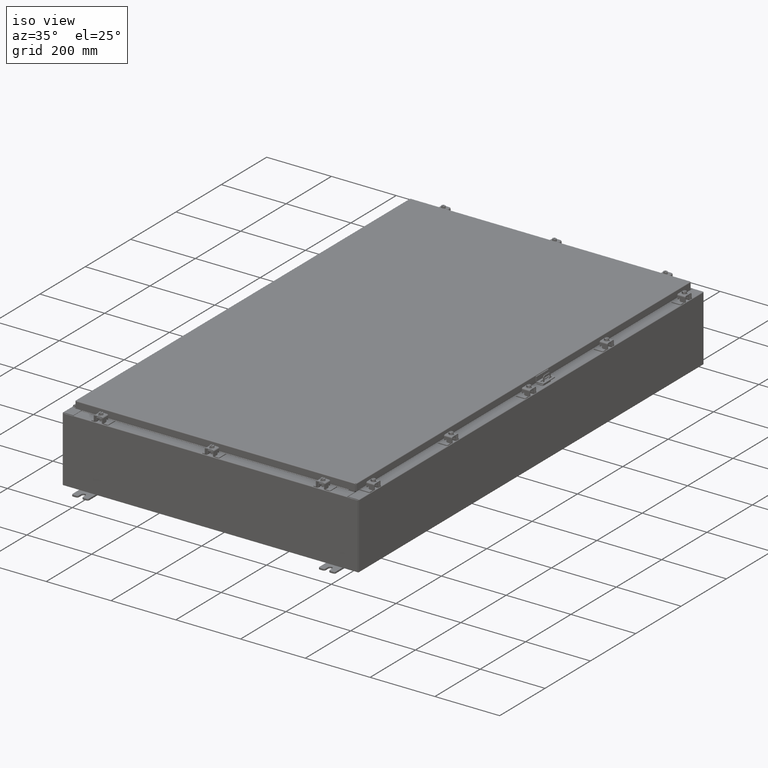
[diagram: clean part render]
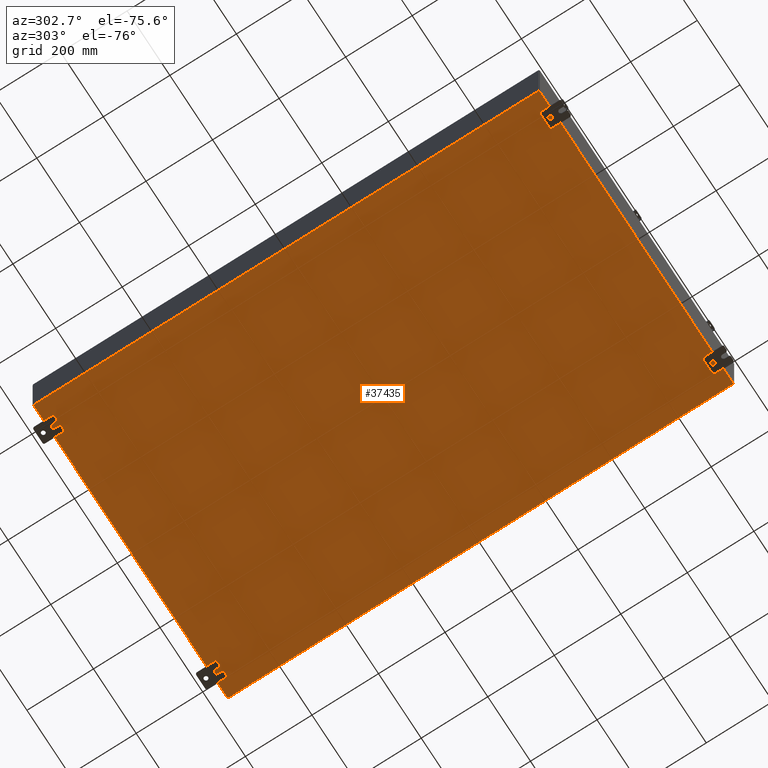
[diagram: tour spotlight — one face highlighted and labeled with its STEP entity id]
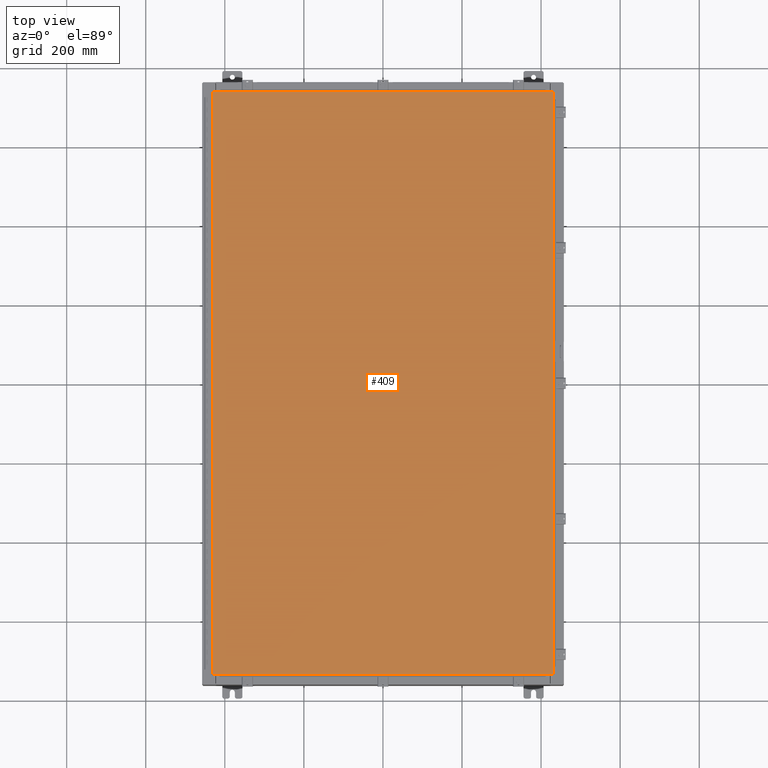
[diagram: tour spotlight — one face highlighted and labeled with its STEP entity id]
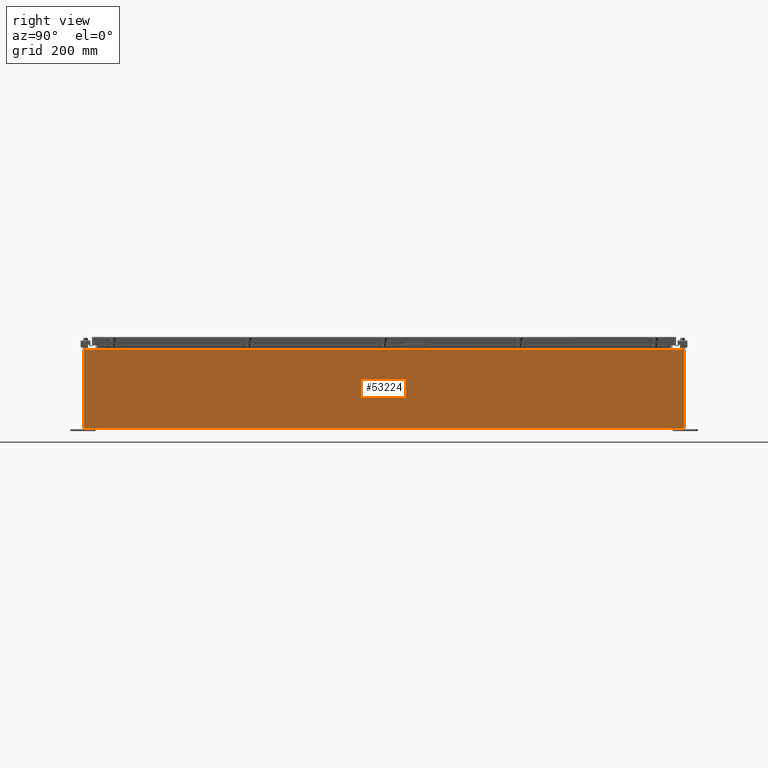
[diagram: tour spotlight — one face highlighted and labeled with its STEP entity id]
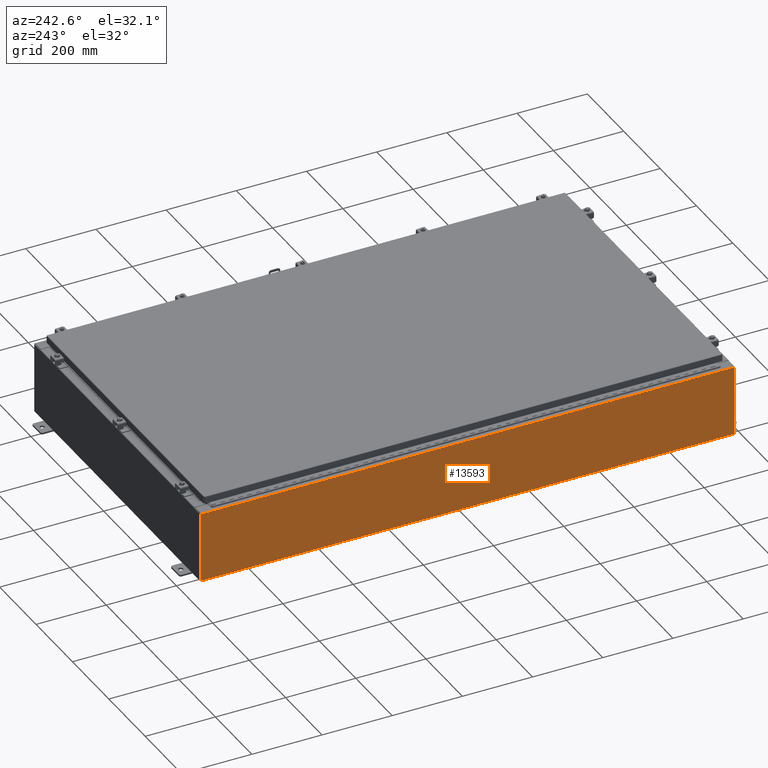
[diagram: tour spotlight — one face highlighted and labeled with its STEP entity id]
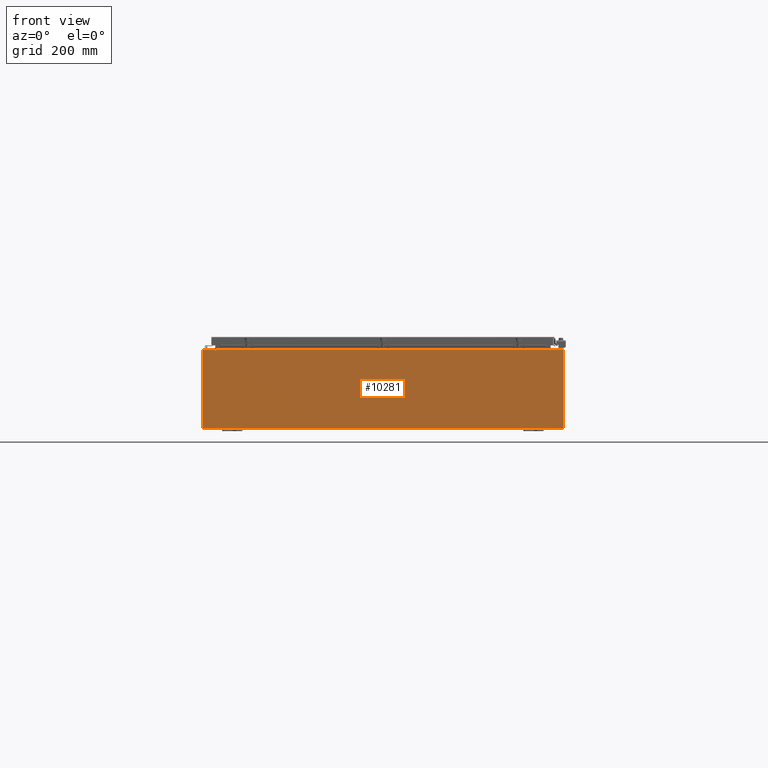
[diagram: tour spotlight — one face highlighted and labeled with its STEP entity id]
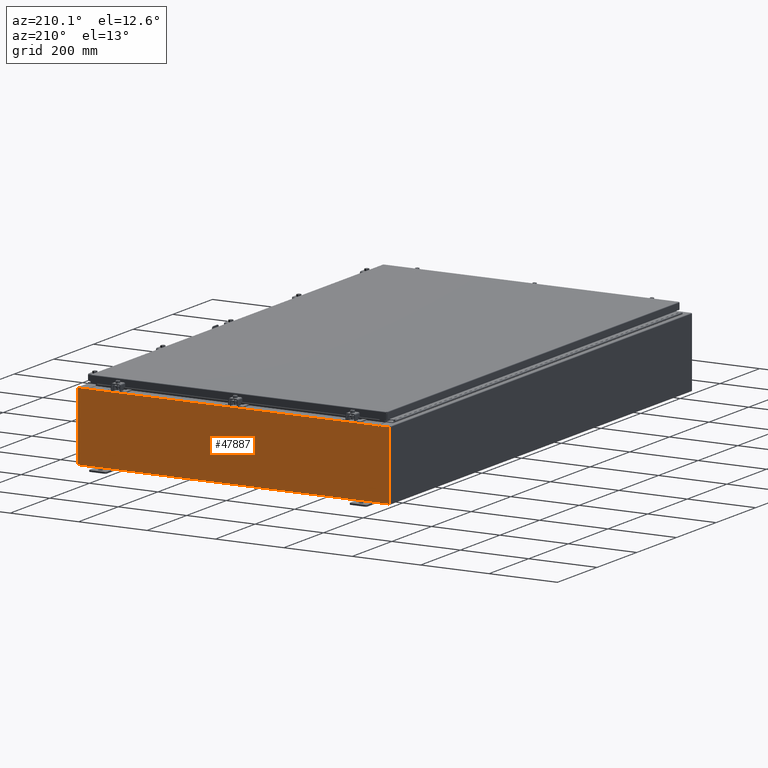
[diagram: tour spotlight — one face highlighted and labeled with its STEP entity id]
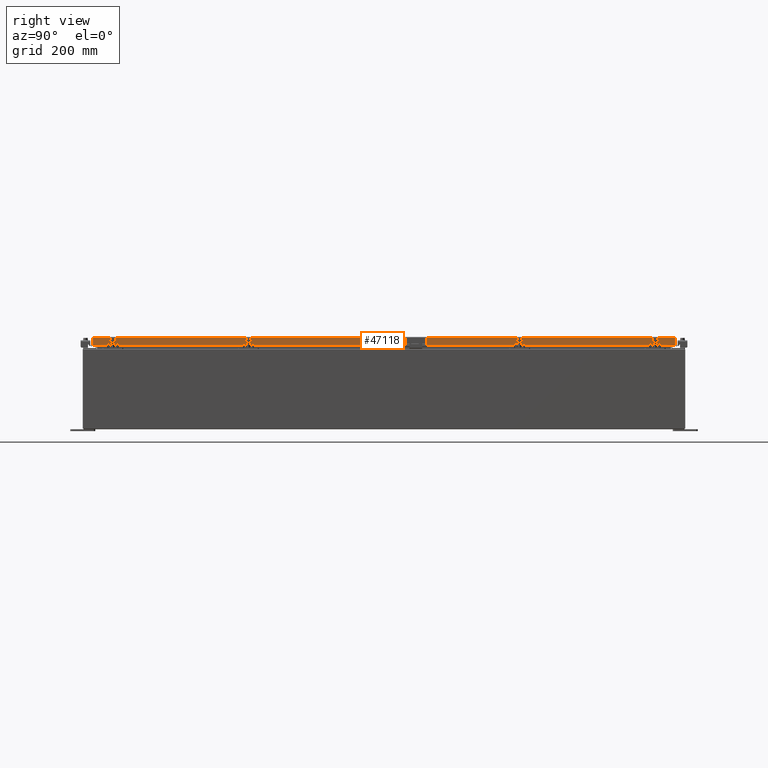
[diagram: tour spotlight — one face highlighted and labeled with its STEP entity id]
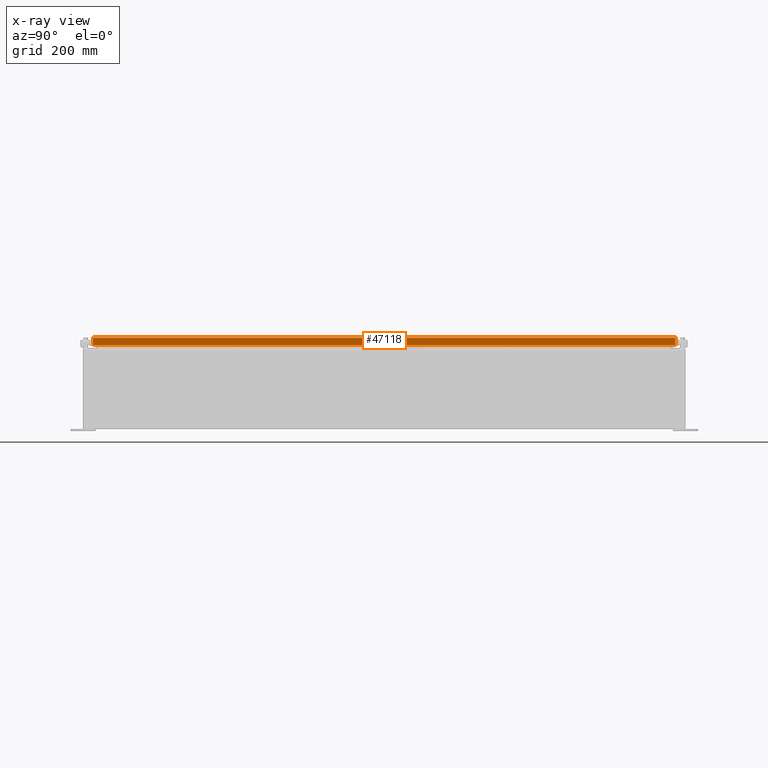
[diagram: x-ray of the same camera — body ghosted, this tour face saturated]
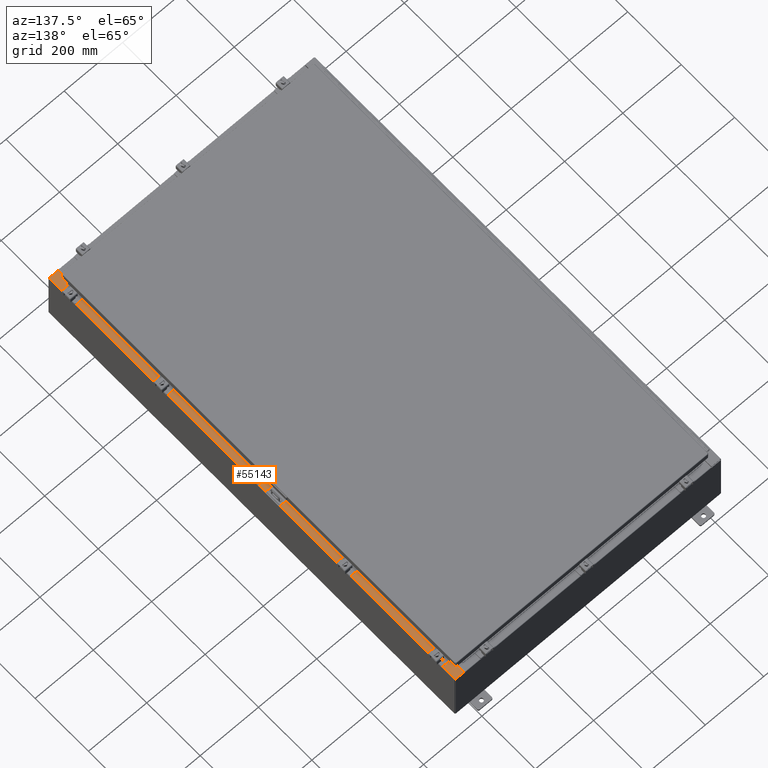
[diagram: tour spotlight — one face highlighted and labeled with its STEP entity id]
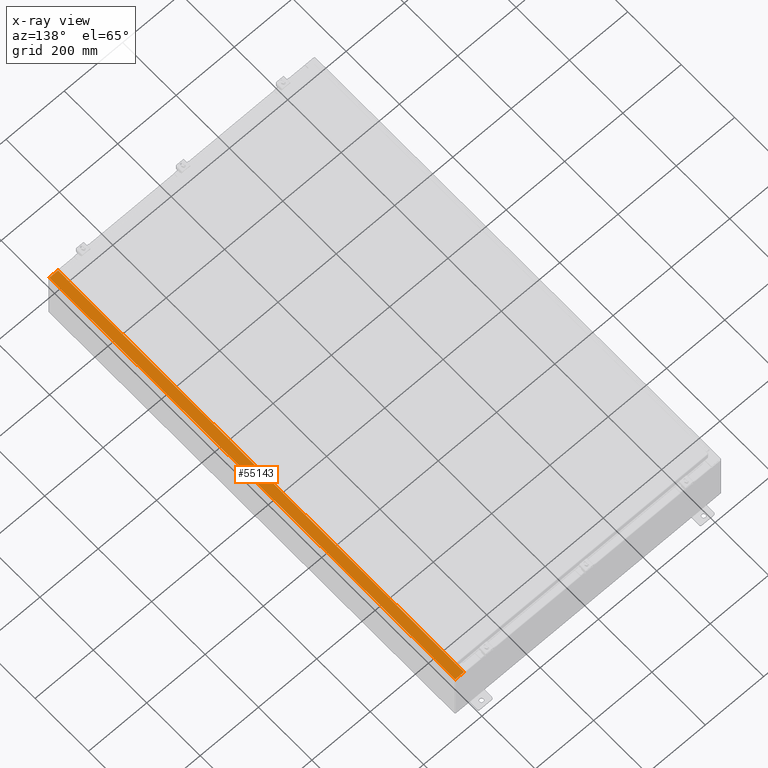
[diagram: x-ray of the same camera — body ghosted, this tour face saturated]
A machine part: a face-by-face anatomy tour. The part has 3408 B-rep faces; the first image is the clean iso view, then the 8 largest visible faces are spotlighted one at a time (largest first), each with its STEP entity span.

Face 1 — auxiliary view, entity #37435. In plain terms, the highlighted planar face has unit normal (0, 0, -1).
Definition (entity closure, byte-faithful):
#1603 = ORIENTED_EDGE ( 'NONE', *, *, #60776, .T. ) ;
#5049 = CARTESIAN_POINT ( 'NONE',  ( 17.91229999999999800, 29.92529999999999300, -0.07469999999999994700 ) ) ;
#5787 = CARTESIAN_POINT ( 'NONE',  ( -17.91230000000000200, -29.92530000000001100, -0.07469999999999994700 ) ) ;
#6430 = LINE ( 'NONE', #50880, #17838 ) ;
#7726 = VECTOR ( 'NONE', #9812, 39.37007874015748100 ) ;
#9385 = VECTOR ( 'NONE', #24857, 39.37007874015748100 ) ;
#9812 = DIRECTION ( 'NONE',  ( -0.0000000000000000000, 1.000000000000000000, -0.0000000000000000000 ) ) ;
#14116 = DIRECTION ( 'NONE',  ( -1.000000000000000000, 0.0000000000000000000, -0.0000000000000000000 ) ) ;
#15830 = ORIENTED_EDGE ( 'NONE', *, *, #21130, .F. ) ;
#16403 = CARTESIAN_POINT ( 'NONE',  ( -18.00000000000000400, 29.92529999999998900, -0.07470000000000000300 ) ) ;
#17427 = VERTEX_POINT ( 'NONE', #45026 ) ;
#17838 = VECTOR ( 'NONE', #26644, 39.37007874015748100 ) ;
#19529 = ORIENTED_EDGE ( 'NONE', *, *, #51950, .F. ) ;
#21130 = EDGE_CURVE ( 'NONE', #33165, #55485, #6430, .T. ) ;
#21975 = EDGE_CURVE ( 'NONE', #17427, #55485, #52750, .T. ) ;
#24857 = DIRECTION ( 'NONE',  ( -0.0000000000000000000, -1.000000000000000000, -0.0000000000000000000 ) ) ;
#26373 = CARTESIAN_POINT ( 'NONE',  ( 17.91229999999999800, -29.92530000000001100, -0.07470000000000000300 ) ) ;
#26644 = DIRECTION ( 'NONE',  ( 1.000000000000000000, 0.0000000000000000000, 0.0000000000000000000 ) ) ;
#31660 = VECTOR ( 'NONE', #45755, 39.37007874015748100 ) ;
#33165 = VERTEX_POINT ( 'NONE', #5787 ) ;
#36743 = VERTEX_POINT ( 'NONE', #62261 ) ;
#37435 = ADVANCED_FACE ( 'NONE', ( #54091 ), #38359, .T. ) ;
#38359 = PLANE ( 'NONE',  #50583 ) ;
#43231 = DIRECTION ( 'NONE',  ( 0.0000000000000000000, 0.0000000000000000000, -1.000000000000000000 ) ) ;
#43801 = CARTESIAN_POINT ( 'NONE',  ( -17.91230000000000200, -29.92530000000002100, -0.07469999999999994700 ) ) ;
#44640 = LINE ( 'NONE', #16403, #31660 ) ;
#44839 = ORIENTED_EDGE ( 'NONE', *, *, #21975, .T. ) ;
#45026 = CARTESIAN_POINT ( 'NONE',  ( 17.91229999999999800, 29.92529999999999300, -0.07469999999999994700 ) ) ;
#45755 = DIRECTION ( 'NONE',  ( -1.000000000000000000, -0.0000000000000000000, -0.0000000000000000000 ) ) ;
#49590 = LINE ( 'NONE', #43801, #7726 ) ;
#50583 = AXIS2_PLACEMENT_3D ( 'NONE', #52635, #43231, #14116 ) ;
#50880 = CARTESIAN_POINT ( 'NONE',  ( -18.00000000000000400, -29.92530000000001100, -0.07470000000000000300 ) ) ;
#51950 = EDGE_CURVE ( 'NONE', #17427, #36743, #44640, .T. ) ;
#52635 = CARTESIAN_POINT ( 'NONE',  ( 0.0000000000000000000, 0.0000000000000000000, -0.07470000000000000300 ) ) ;
#52750 = LINE ( 'NONE', #5049, #9385 ) ;
#54091 = FACE_OUTER_BOUND ( 'NONE', #62811, .T. ) ;
#55485 = VERTEX_POINT ( 'NONE', #26373 ) ;
#60776 = EDGE_CURVE ( 'NONE', #33165, #36743, #49590, .T. ) ;
#62261 = CARTESIAN_POINT ( 'NONE',  ( -17.91230000000000200, 29.92529999999998600, -0.07470000000000000300 ) ) ;
#62811 = EDGE_LOOP ( 'NONE', ( #15830, #1603, #19529, #44839 ) ) ;

Face 2 — top view, entity #409. In plain terms, the highlighted planar face has unit normal (0, 0, -1).
Definition (entity closure, byte-faithful):
#403 = VECTOR ( 'NONE', #12833, 39.37007874015748100 ) ;
#409 = ADVANCED_FACE ( 'NONE', ( #11897 ), #21359, .F. ) ;
#988 = CARTESIAN_POINT ( 'NONE',  ( 16.99030000000000500, -29.00630000000000000, -2.048885995248197400E-016 ) ) ;
#1909 = LINE ( 'NONE', #37053, #403 ) ;
#1910 = AXIS2_PLACEMENT_3D ( 'NONE', #20847, #22173, #22594 ) ;
#2416 = VERTEX_POINT ( 'NONE', #37028 ) ;
#2711 = EDGE_CURVE ( 'NONE', #2416, #16152, #38317, .T. ) ;
#4378 = ORIENTED_EDGE ( 'NONE', *, *, #29459, .T. ) ;
#8164 = DIRECTION ( 'NONE',  ( 0.0000000000000000000, 1.000000000000000000, 0.0000000000000000000 ) ) ;
#8672 = ORIENTED_EDGE ( 'NONE', *, *, #61879, .T. ) ;
#9454 = VECTOR ( 'NONE', #33738, 39.37007874015748100 ) ;
#10577 = ORIENTED_EDGE ( 'NONE', *, *, #52795, .T. ) ;
#11897 = FACE_OUTER_BOUND ( 'NONE', #26634, .T. ) ;
#12449 = VECTOR ( 'NONE', #17424, 39.37007874015748100 ) ;
#12833 = DIRECTION ( 'NONE',  ( 1.000000000000000000, -0.0000000000000000000, -0.0000000000000000000 ) ) ;
#12842 = CARTESIAN_POINT ( 'NONE',  ( 16.99030000000000500, -29.00630000000000000, -2.048885995248197400E-016 ) ) ;
#16152 = VERTEX_POINT ( 'NONE', #44330 ) ;
#17343 = CARTESIAN_POINT ( 'NONE',  ( -16.99029999999998400, 29.00630000000000000, 4.166068190338001500E-015 ) ) ;
#17424 = DIRECTION ( 'NONE',  ( 0.0000000000000000000, -1.000000000000000000, 0.0000000000000000000 ) ) ;
#20716 = VERTEX_POINT ( 'NONE', #62972 ) ;
#20847 = CARTESIAN_POINT ( 'NONE',  ( 0.0000000000000000000, 0.0000000000000000000, 0.0000000000000000000 ) ) ;
#21359 = PLANE ( 'NONE',  #1910 ) ;
#22173 = DIRECTION ( 'NONE',  ( 0.0000000000000000000, 0.0000000000000000000, -1.000000000000000000 ) ) ;
#22594 = DIRECTION ( 'NONE',  ( -1.000000000000000000, 0.0000000000000000000, -0.0000000000000000000 ) ) ;
#25032 = ORIENTED_EDGE ( 'NONE', *, *, #2711, .T. ) ;
#26634 = EDGE_LOOP ( 'NONE', ( #10577, #8672, #4378, #25032 ) ) ;
#29459 = EDGE_CURVE ( 'NONE', #20716, #2416, #48245, .T. ) ;
#33738 = DIRECTION ( 'NONE',  ( -1.000000000000000000, -0.0000000000000000000, -0.0000000000000000000 ) ) ;
#34311 = VERTEX_POINT ( 'NONE', #988 ) ;
#37028 = CARTESIAN_POINT ( 'NONE',  ( -16.99029999999998400, 29.00630000000000000, 4.166068190338001500E-015 ) ) ;
#37053 = CARTESIAN_POINT ( 'NONE',  ( -16.99029999999999800, -29.00630000000000300, 1.946441695485787500E-015 ) ) ;
#38317 = LINE ( 'NONE', #17343, #12449 ) ;
#44330 = CARTESIAN_POINT ( 'NONE',  ( -16.99029999999999800, -29.00630000000000300, 1.946441695485787500E-015 ) ) ;
#46500 = VECTOR ( 'NONE', #8164, 39.37007874015748100 ) ;
#48245 = LINE ( 'NONE', #53377, #9454 ) ;
#52795 = EDGE_CURVE ( 'NONE', #16152, #34311, #1909, .T. ) ;
#53377 = CARTESIAN_POINT ( 'NONE',  ( 16.99030000000000500, 29.00630000000000300, 1.946441695485787500E-015 ) ) ;
#59437 = LINE ( 'NONE', #12842, #46500 ) ;
#61879 = EDGE_CURVE ( 'NONE', #34311, #20716, #59437, .T. ) ;
#62972 = CARTESIAN_POINT ( 'NONE',  ( 16.99030000000000500, 29.00630000000000300, 1.946441695485787500E-015 ) ) ;

Face 3 — right view, entity #53224. In plain terms, the highlighted planar face has unit normal (-1, 0, 0).
Definition (entity closure, byte-faithful):
#386 = LINE ( 'NONE', #38006, #39170 ) ;
#1513 = PLANE ( 'NONE',  #7719 ) ;
#1891 = ORIENTED_EDGE ( 'NONE', *, *, #44967, .T. ) ;
#2471 = DIRECTION ( 'NONE',  ( -0.0000000000000000000, -1.000000000000000000, -0.0000000000000000000 ) ) ;
#6407 = DIRECTION ( 'NONE',  ( -1.000000000000000000, 0.0000000000000000000, 3.584876173029202900E-015 ) ) ;
#7390 = CARTESIAN_POINT ( 'NONE',  ( 17.99999999999999600, -29.92530000000001100, 0.01299999999999984700 ) ) ;
#7719 = AXIS2_PLACEMENT_3D ( 'NONE', #50010, #6407, #40420 ) ;
#8196 = VECTOR ( 'NONE', #26400, 39.37007874015748100 ) ;
#8328 = ORIENTED_EDGE ( 'NONE', *, *, #55712, .T. ) ;
#9732 = LINE ( 'NONE', #21545, #8196 ) ;
#10943 = CARTESIAN_POINT ( 'NONE',  ( 18.00000000000002500, 29.92529999999999300, 7.837599999999999200 ) ) ;
#12303 = LINE ( 'NONE', #29172, #22190 ) ;
#13764 = CARTESIAN_POINT ( 'NONE',  ( 18.00000000000002500, -29.92530000000001100, 7.837599999999999200 ) ) ;
#13772 = DIRECTION ( 'NONE',  ( -3.584876173029202900E-015, 0.0000000000000000000, -1.000000000000000000 ) ) ;
#14478 = VECTOR ( 'NONE', #2471, 39.37007874015748100 ) ;
#16245 = VERTEX_POINT ( 'NONE', #10943 ) ;
#16683 = VERTEX_POINT ( 'NONE', #19620 ) ;
#19103 = ORIENTED_EDGE ( 'NONE', *, *, #49049, .F. ) ;
#19179 = EDGE_CURVE ( 'NONE', #16245, #32298, #9732, .T. ) ;
#19620 = CARTESIAN_POINT ( 'NONE',  ( 17.99999999999999600, -29.92530000000001100, 0.01299999999999983600 ) ) ;
#21250 = ORIENTED_EDGE ( 'NONE', *, *, #19179, .T. ) ;
#21545 = CARTESIAN_POINT ( 'NONE',  ( 18.00000000000002500, 29.92529999999999300, 7.837599999999999200 ) ) ;
#22190 = VECTOR ( 'NONE', #58351, 39.37007874015748100 ) ;
#26400 = DIRECTION ( 'NONE',  ( -0.0000000000000000000, -1.000000000000000000, -0.0000000000000000000 ) ) ;
#29172 = CARTESIAN_POINT ( 'NONE',  ( 17.99999999999999600, 29.92529999999998900, -6.478858477053722900E-014 ) ) ;
#32298 = VERTEX_POINT ( 'NONE', #13764 ) ;
#32356 = CARTESIAN_POINT ( 'NONE',  ( 17.99999999999999600, 29.92529999999999300, 0.01299999999999984700 ) ) ;
#35085 = EDGE_LOOP ( 'NONE', ( #21250, #8328, #19103, #1891 ) ) ;
#35521 = VERTEX_POINT ( 'NONE', #32356 ) ;
#38006 = CARTESIAN_POINT ( 'NONE',  ( 17.99999999999999600, -29.92530000000001100, -6.478858477053722900E-014 ) ) ;
#39170 = VECTOR ( 'NONE', #13772, 39.37007874015748100 ) ;
#40420 = DIRECTION ( 'NONE',  ( 3.584876173029202900E-015, 0.0000000000000000000, 1.000000000000000000 ) ) ;
#42192 = FACE_OUTER_BOUND ( 'NONE', #35085, .T. ) ;
#44967 = EDGE_CURVE ( 'NONE', #35521, #16245, #12303, .T. ) ;
#49049 = EDGE_CURVE ( 'NONE', #35521, #16683, #53301, .T. ) ;
#50010 = CARTESIAN_POINT ( 'NONE',  ( 17.99999999999999600, 0.0000000000000000000, -6.478858477053722900E-014 ) ) ;
#53224 = ADVANCED_FACE ( 'NONE', ( #42192 ), #1513, .F. ) ;
#53301 = LINE ( 'NONE', #7390, #14478 ) ;
#55712 = EDGE_CURVE ( 'NONE', #32298, #16683, #386, .T. ) ;
#58351 = DIRECTION ( 'NONE',  ( 3.584876173029202900E-015, 0.0000000000000000000, 1.000000000000000000 ) ) ;

Face 4 — auxiliary view, entity #13593. In plain terms, the highlighted planar face has unit normal (1, 0, 0).
Definition (entity closure, byte-faithful):
#926 = LINE ( 'NONE', #41062, #25300 ) ;
#7047 = DIRECTION ( 'NONE',  ( 0.0000000000000000000, 1.000000000000000000, 0.0000000000000000000 ) ) ;
#7228 = EDGE_CURVE ( 'NONE', #17235, #33564, #9316, .T. ) ;
#7779 = VECTOR ( 'NONE', #56837, 39.37007874015748100 ) ;
#9316 = LINE ( 'NONE', #13621, #17647 ) ;
#9848 = VERTEX_POINT ( 'NONE', #25847 ) ;
#11252 = EDGE_CURVE ( 'NONE', #9848, #33564, #32710, .T. ) ;
#12943 = EDGE_LOOP ( 'NONE', ( #30754, #39002, #27294, #26494 ) ) ;
#13418 = DIRECTION ( 'NONE',  ( 3.584876173029202900E-015, 0.0000000000000000000, -1.000000000000000000 ) ) ;
#13593 = ADVANCED_FACE ( 'NONE', ( #37883 ), #32947, .F. ) ;
#13621 = CARTESIAN_POINT ( 'NONE',  ( -18.00000000000000400, 29.92529999999998900, -6.478858477053724100E-014 ) ) ;
#17235 = VERTEX_POINT ( 'NONE', #38667 ) ;
#17647 = VECTOR ( 'NONE', #13418, 39.37007874015748100 ) ;
#19851 = VECTOR ( 'NONE', #27758, 39.37007874015748100 ) ;
#20731 = LINE ( 'NONE', #51922, #7779 ) ;
#23462 = DIRECTION ( 'NONE',  ( 3.584876173029202900E-015, 0.0000000000000000000, -1.000000000000000000 ) ) ;
#24698 = EDGE_CURVE ( 'NONE', #9848, #60114, #20731, .T. ) ;
#25300 = VECTOR ( 'NONE', #7047, 39.37007874015748100 ) ;
#25847 = CARTESIAN_POINT ( 'NONE',  ( -18.00000000000000400, -29.92530000000001100, 0.01299999999999984700 ) ) ;
#26494 = ORIENTED_EDGE ( 'NONE', *, *, #24698, .T. ) ;
#27294 = ORIENTED_EDGE ( 'NONE', *, *, #11252, .F. ) ;
#27758 = DIRECTION ( 'NONE',  ( -0.0000000000000000000, 1.000000000000000000, -0.0000000000000000000 ) ) ;
#27931 = CARTESIAN_POINT ( 'NONE',  ( -18.00000000000002800, -29.92530000000001100, 7.837599999999999200 ) ) ;
#30754 = ORIENTED_EDGE ( 'NONE', *, *, #44500, .T. ) ;
#32710 = LINE ( 'NONE', #37331, #19851 ) ;
#32947 = PLANE ( 'NONE',  #60270 ) ;
#33564 = VERTEX_POINT ( 'NONE', #43809 ) ;
#37331 = CARTESIAN_POINT ( 'NONE',  ( -18.00000000000000400, 29.92529999999998900, 0.01299999999999984700 ) ) ;
#37876 = CARTESIAN_POINT ( 'NONE',  ( -18.00000000000000400, 0.0000000000000000000, -6.478858477053724100E-014 ) ) ;
#37883 = FACE_OUTER_BOUND ( 'NONE', #12943, .T. ) ;
#38667 = CARTESIAN_POINT ( 'NONE',  ( -18.00000000000003200, 29.92529999999998900, 7.837599999999999200 ) ) ;
#39002 = ORIENTED_EDGE ( 'NONE', *, *, #7228, .T. ) ;
#41062 = CARTESIAN_POINT ( 'NONE',  ( -18.00000000000002800, -29.92530000000001800, 7.837599999999999200 ) ) ;
#43809 = CARTESIAN_POINT ( 'NONE',  ( -18.00000000000000400, 29.92529999999998600, 0.01299999999999983600 ) ) ;
#44500 = EDGE_CURVE ( 'NONE', #60114, #17235, #926, .T. ) ;
#51922 = CARTESIAN_POINT ( 'NONE',  ( -18.00000000000000400, -29.92530000000001100, -6.478858477053724100E-014 ) ) ;
#52590 = DIRECTION ( 'NONE',  ( 1.000000000000000000, 0.0000000000000000000, 3.584876173029202900E-015 ) ) ;
#56837 = DIRECTION ( 'NONE',  ( -3.584876173029202900E-015, 0.0000000000000000000, 1.000000000000000000 ) ) ;
#60114 = VERTEX_POINT ( 'NONE', #27931 ) ;
#60270 = AXIS2_PLACEMENT_3D ( 'NONE', #37876, #52590, #23462 ) ;

Face 5 — front view, entity #10281. In plain terms, the highlighted planar face has unit normal (-0, 1, -0).
Definition (entity closure, byte-faithful):
#173 = VECTOR ( 'NONE', #40017, 39.37007874015748100 ) ;
#1835 = DIRECTION ( 'NONE',  ( -0.0000000000000000000, -0.0000000000000000000, 1.000000000000000000 ) ) ;
#3013 = EDGE_CURVE ( 'NONE', #16136, #43673, #8610, .T. ) ;
#3098 = CARTESIAN_POINT ( 'NONE',  ( 17.92530000000000400, 0.0000000000000000000, -3.925299999999999100 ) ) ;
#3108 = LINE ( 'NONE', #51949, #53362 ) ;
#3187 = LINE ( 'NONE', #18540, #27539 ) ;
#3379 = EDGE_CURVE ( 'NONE', #53410, #9820, #38961, .T. ) ;
#3589 = CARTESIAN_POINT ( 'NONE',  ( -17.92529999999999600, 0.0000000000000000000, 3.925300000000000500 ) ) ;
#4332 = LINE ( 'NONE', #45673, #41607 ) ;
#4975 = LINE ( 'NONE', #42326, #14881 ) ;
#5568 = VERTEX_POINT ( 'NONE', #27023 ) ;
#6186 = EDGE_CURVE ( 'NONE', #36346, #5568, #62677, .T. ) ;
#6452 = VERTEX_POINT ( 'NONE', #61909 ) ;
#8213 = CARTESIAN_POINT ( 'NONE',  ( -17.92529999999999600, 0.0000000000000000000, -3.925299999999999100 ) ) ;
#8610 = CIRCLE ( 'NONE', #31972, 0.01867499999999949400 ) ;
#9115 = DIRECTION ( 'NONE',  ( -0.0000000000000000000, 1.000000000000000000, -0.0000000000000000000 ) ) ;
#9134 = ORIENTED_EDGE ( 'NONE', *, *, #39423, .T. ) ;
#9820 = VERTEX_POINT ( 'NONE', #39839 ) ;
#10281 = ADVANCED_FACE ( 'NONE', ( #14250 ), #42964, .F. ) ;
#11285 = CARTESIAN_POINT ( 'NONE',  ( 16.63720000000000700, 0.0000000000000000000, 3.874950000000000100 ) ) ;
#11880 = EDGE_CURVE ( 'NONE', #43673, #9820, #3108, .T. ) ;
#12592 = EDGE_LOOP ( 'NONE', ( #26526, #28386, #60877, #12866, #49340, #61799, #49987, #33319, #17029, #51953, #9134, #18739 ) ) ;
#12866 = ORIENTED_EDGE ( 'NONE', *, *, #6186, .T. ) ;
#12882 = VERTEX_POINT ( 'NONE', #3098 ) ;
#13843 = CARTESIAN_POINT ( 'NONE',  ( 0.0000000000000000000, 0.0000000000000000000, 0.0000000000000000000 ) ) ;
#14250 = FACE_OUTER_BOUND ( 'NONE', #12592, .T. ) ;
#14595 = CARTESIAN_POINT ( 'NONE',  ( 16.67454999999967000, -0.0000000000000000000, -1.447541957108349400E-012 ) ) ;
#14881 = VECTOR ( 'NONE', #47241, 39.37007874015748100 ) ;
#16136 = VERTEX_POINT ( 'NONE', #34507 ) ;
#16949 = CARTESIAN_POINT ( 'NONE',  ( 17.92530000000000400, 0.0000000000000000000, 3.925300000000000500 ) ) ;
#17029 = ORIENTED_EDGE ( 'NONE', *, *, #48256, .T. ) ;
#18379 = EDGE_CURVE ( 'NONE', #6452, #31518, #27203, .T. ) ;
#18396 = VECTOR ( 'NONE', #46773, 39.37007874015748100 ) ;
#18540 = CARTESIAN_POINT ( 'NONE',  ( -17.92529999999999600, 0.0000000000000000000, -3.925299999999999100 ) ) ;
#18739 = ORIENTED_EDGE ( 'NONE', *, *, #3379, .T. ) ;
#18766 = DIRECTION ( 'NONE',  ( 0.0000000000000000000, -1.000000000000000000, 0.0000000000000000000 ) ) ;
#19171 = CARTESIAN_POINT ( 'NONE',  ( -16.63719999999999600, 3.756290991288361700E-016, 3.912300000000000100 ) ) ;
#20168 = CARTESIAN_POINT ( 'NONE',  ( 16.63720000000000700, 0.0000000000000000000, 0.0000000000000000000 ) ) ;
#20984 = AXIS2_PLACEMENT_3D ( 'NONE', #38230, #9115, #43097 ) ;
#21807 = VECTOR ( 'NONE', #25077, 39.37007874015748100 ) ;
#22321 = CARTESIAN_POINT ( 'NONE',  ( 17.92530000000000400, 0.0000000000000000000, 3.925300000000000500 ) ) ;
#24793 = EDGE_CURVE ( 'NONE', #12882, #39622, #3187, .T. ) ;
#25077 = DIRECTION ( 'NONE',  ( 0.0000000000000000000, 0.0000000000000000000, 1.000000000000000000 ) ) ;
#25629 = VECTOR ( 'NONE', #37195, 39.37007874015748100 ) ;
#26526 = ORIENTED_EDGE ( 'NONE', *, *, #11880, .F. ) ;
#27023 = CARTESIAN_POINT ( 'NONE',  ( 16.63720000000000700, 0.0000000000000000000, 3.912300000000000100 ) ) ;
#27203 = LINE ( 'NONE', #14595, #38618 ) ;
#27539 = VECTOR ( 'NONE', #62320, 39.37007874015748100 ) ;
#27685 = DIRECTION ( 'NONE',  ( 0.0000000000000000000, 0.0000000000000000000, 1.000000000000000000 ) ) ;
#28386 = ORIENTED_EDGE ( 'NONE', *, *, #3013, .F. ) ;
#29791 = VERTEX_POINT ( 'NONE', #16949 ) ;
#30881 = VERTEX_POINT ( 'NONE', #11285 ) ;
#31518 = VERTEX_POINT ( 'NONE', #40957 ) ;
#31972 = AXIS2_PLACEMENT_3D ( 'NONE', #59011, #58868, #58809 ) ;
#32259 = CARTESIAN_POINT ( 'NONE',  ( -17.92529999999999600, 0.0000000000000000000, 3.925300000000000500 ) ) ;
#32775 = LINE ( 'NONE', #22321, #18396 ) ;
#33319 = ORIENTED_EDGE ( 'NONE', *, *, #52089, .T. ) ;
#34507 = CARTESIAN_POINT ( 'NONE',  ( -16.63719999999999600, -0.0000000000000000000, 3.874950000000000100 ) ) ;
#36173 = EDGE_CURVE ( 'NONE', #36346, #16136, #4975, .T. ) ;
#36346 = VERTEX_POINT ( 'NONE', #19171 ) ;
#37195 = DIRECTION ( 'NONE',  ( 1.000000000000000000, 0.0000000000000000000, 0.0000000000000000000 ) ) ;
#38230 = CARTESIAN_POINT ( 'NONE',  ( 16.65587500000000500, 0.0000000000000000000, 3.874950000000000100 ) ) ;
#38536 = LINE ( 'NONE', #32259, #25629 ) ;
#38618 = VECTOR ( 'NONE', #53517, 39.37007874015748100 ) ;
#38961 = LINE ( 'NONE', #41500, #173 ) ;
#39423 = EDGE_CURVE ( 'NONE', #39622, #53410, #4332, .T. ) ;
#39622 = VERTEX_POINT ( 'NONE', #8213 ) ;
#39839 = CARTESIAN_POINT ( 'NONE',  ( -16.67454999999999600, 0.0000000000000000000, 3.925300000000000500 ) ) ;
#40017 = DIRECTION ( 'NONE',  ( 1.000000000000000000, 0.0000000000000000000, 0.0000000000000000000 ) ) ;
#40120 = AXIS2_PLACEMENT_3D ( 'NONE', #13843, #18766, #52774 ) ;
#40740 = DIRECTION ( 'NONE',  ( 1.000000000000000000, 0.0000000000000000000, 0.0000000000000000000 ) ) ;
#40957 = CARTESIAN_POINT ( 'NONE',  ( 16.67455000000000700, 0.0000000000000000000, 3.874950000000000100 ) ) ;
#41500 = CARTESIAN_POINT ( 'NONE',  ( -17.92529999999999600, 0.0000000000000000000, 3.925300000000000500 ) ) ;
#41607 = VECTOR ( 'NONE', #1835, 39.37007874015748100 ) ;
#42326 = CARTESIAN_POINT ( 'NONE',  ( -16.63719999999999600, -0.0000000000000000000, 0.0000000000000000000 ) ) ;
#42753 = CARTESIAN_POINT ( 'NONE',  ( -16.63719999999999600, 3.756290991288361700E-016, 3.912300000000000100 ) ) ;
#42964 = PLANE ( 'NONE',  #40120 ) ;
#43097 = DIRECTION ( 'NONE',  ( 0.0000000000000000000, 0.0000000000000000000, -1.000000000000000000 ) ) ;
#43673 = VERTEX_POINT ( 'NONE', #53740 ) ;
#45673 = CARTESIAN_POINT ( 'NONE',  ( -17.92529999999999600, 0.0000000000000000000, 3.925300000000000500 ) ) ;
#46773 = DIRECTION ( 'NONE',  ( 0.0000000000000000000, 0.0000000000000000000, -1.000000000000000000 ) ) ;
#47241 = DIRECTION ( 'NONE',  ( 0.0000000000000000000, 0.0000000000000000000, -1.000000000000000000 ) ) ;
#47648 = LINE ( 'NONE', #20168, #21807 ) ;
#48256 = EDGE_CURVE ( 'NONE', #29791, #12882, #32775, .T. ) ;
#48359 = EDGE_CURVE ( 'NONE', #31518, #30881, #62492, .T. ) ;
#49340 = ORIENTED_EDGE ( 'NONE', *, *, #52409, .F. ) ;
#49764 = VECTOR ( 'NONE', #40740, 39.37007874015748100 ) ;
#49987 = ORIENTED_EDGE ( 'NONE', *, *, #18379, .F. ) ;
#51949 = CARTESIAN_POINT ( 'NONE',  ( -16.67454999999999600, -0.0000000000000000000, 0.0000000000000000000 ) ) ;
#51953 = ORIENTED_EDGE ( 'NONE', *, *, #24793, .T. ) ;
#52089 = EDGE_CURVE ( 'NONE', #6452, #29791, #38536, .T. ) ;
#52409 = EDGE_CURVE ( 'NONE', #30881, #5568, #47648, .T. ) ;
#52774 = DIRECTION ( 'NONE',  ( 0.0000000000000000000, -0.0000000000000000000, -1.000000000000000000 ) ) ;
#53362 = VECTOR ( 'NONE', #27685, 39.37007874015748100 ) ;
#53410 = VERTEX_POINT ( 'NONE', #3589 ) ;
#53517 = DIRECTION ( 'NONE',  ( -8.681145560800009800E-014, 0.0000000000000000000, -1.000000000000000000 ) ) ;
#53740 = CARTESIAN_POINT ( 'NONE',  ( -16.67454999999999600, 0.0000000000000000000, 3.874950000000000100 ) ) ;
#58809 = DIRECTION ( 'NONE',  ( 0.0000000000000000000, 0.0000000000000000000, -1.000000000000000000 ) ) ;
#58868 = DIRECTION ( 'NONE',  ( -0.0000000000000000000, 1.000000000000000000, -0.0000000000000000000 ) ) ;
#59011 = CARTESIAN_POINT ( 'NONE',  ( -16.65587499999999800, 0.0000000000000000000, 3.874950000000000100 ) ) ;
#60877 = ORIENTED_EDGE ( 'NONE', *, *, #36173, .F. ) ;
#61799 = ORIENTED_EDGE ( 'NONE', *, *, #48359, .F. ) ;
#61909 = CARTESIAN_POINT ( 'NONE',  ( 16.67455000000001100, 0.0000000000000000000, 3.925300000000000500 ) ) ;
#62320 = DIRECTION ( 'NONE',  ( -1.000000000000000000, -0.0000000000000000000, -0.0000000000000000000 ) ) ;
#62492 = CIRCLE ( 'NONE', #20984, 0.01867499999999949400 ) ;
#62677 = LINE ( 'NONE', #42753, #49764 ) ;

Face 6 — auxiliary view, entity #47887. In plain terms, the highlighted planar face has unit normal (0, -1, 0).
Definition (entity closure, byte-faithful):
#158 = LINE ( 'NONE', #52703, #24536 ) ;
#335 = LINE ( 'NONE', #22154, #26227 ) ;
#531 = DIRECTION ( 'NONE',  ( 0.0000000000000000000, 0.0000000000000000000, -1.000000000000000000 ) ) ;
#901 = CARTESIAN_POINT ( 'NONE',  ( -16.67454999999999600, 0.0000000000000000000, 3.874950000000000100 ) ) ;
#1484 = EDGE_CURVE ( 'NONE', #29295, #36976, #14890, .T. ) ;
#1618 = EDGE_CURVE ( 'NONE', #35881, #50922, #18692, .T. ) ;
#2170 = ORIENTED_EDGE ( 'NONE', *, *, #34807, .F. ) ;
#2292 = VECTOR ( 'NONE', #38391, 39.37007874015748100 ) ;
#2338 = CARTESIAN_POINT ( 'NONE',  ( 16.67455000000000700, 0.0000000000000000000, 3.874950000000000100 ) ) ;
#2701 = DIRECTION ( 'NONE',  ( -0.0000000000000000000, 1.000000000000000000, -0.0000000000000000000 ) ) ;
#5382 = CARTESIAN_POINT ( 'NONE',  ( 16.63720000000000700, 0.0000000000000000000, 3.874950000000000100 ) ) ;
#5719 = VECTOR ( 'NONE', #20186, 39.37007874015748100 ) ;
#8899 = DIRECTION ( 'NONE',  ( 0.0000000000000000000, 0.0000000000000000000, 1.000000000000000000 ) ) ;
#9542 = ORIENTED_EDGE ( 'NONE', *, *, #41279, .F. ) ;
#9607 = CARTESIAN_POINT ( 'NONE',  ( 0.0000000000000000000, 0.0000000000000000000, 0.0000000000000000000 ) ) ;
#9818 = DIRECTION ( 'NONE',  ( 0.0000000000000000000, -0.0000000000000000000, -1.000000000000000000 ) ) ;
#10208 = CIRCLE ( 'NONE', #42155, 0.01867499999999949400 ) ;
#11375 = EDGE_CURVE ( 'NONE', #55553, #20923, #28187, .T. ) ;
#12265 = ORIENTED_EDGE ( 'NONE', *, *, #59133, .T. ) ;
#12360 = DIRECTION ( 'NONE',  ( -0.0000000000000000000, -0.0000000000000000000, 1.000000000000000000 ) ) ;
#13350 = VECTOR ( 'NONE', #26200, 39.37007874015748100 ) ;
#13846 = FACE_OUTER_BOUND ( 'NONE', #27877, .T. ) ;
#14327 = CARTESIAN_POINT ( 'NONE',  ( -16.63719999999999600, -0.0000000000000000000, 0.0000000000000000000 ) ) ;
#14890 = LINE ( 'NONE', #26541, #13350 ) ;
#14934 = VECTOR ( 'NONE', #33819, 39.37007874015748100 ) ;
#15926 = DIRECTION ( 'NONE',  ( 1.000000000000000000, 0.0000000000000000000, 0.0000000000000000000 ) ) ;
#16332 = LINE ( 'NONE', #39873, #27720 ) ;
#16849 = AXIS2_PLACEMENT_3D ( 'NONE', #9607, #38909, #9818 ) ;
#18692 = LINE ( 'NONE', #21890, #5719 ) ;
#19180 = VECTOR ( 'NONE', #20421, 39.37007874015748100 ) ;
#19437 = VERTEX_POINT ( 'NONE', #38051 ) ;
#20186 = DIRECTION ( 'NONE',  ( 0.0000000000000000000, 0.0000000000000000000, 1.000000000000000000 ) ) ;
#20421 = DIRECTION ( 'NONE',  ( 1.000000000000000000, 0.0000000000000000000, 0.0000000000000000000 ) ) ;
#20923 = VERTEX_POINT ( 'NONE', #2338 ) ;
#21890 = CARTESIAN_POINT ( 'NONE',  ( -16.67454999999999600, -0.0000000000000000000, 0.0000000000000000000 ) ) ;
#22044 = LINE ( 'NONE', #40126, #60823 ) ;
#22154 = CARTESIAN_POINT ( 'NONE',  ( -17.92529999999999600, 0.0000000000000000000, 3.925300000000000500 ) ) ;
#24536 = VECTOR ( 'NONE', #8899, 39.37007874015748100 ) ;
#26200 = DIRECTION ( 'NONE',  ( -1.000000000000000000, -0.0000000000000000000, -0.0000000000000000000 ) ) ;
#26227 = VECTOR ( 'NONE', #12360, 39.37007874015748100 ) ;
#26541 = CARTESIAN_POINT ( 'NONE',  ( -17.92529999999999600, 0.0000000000000000000, -3.925299999999999100 ) ) ;
#26890 = ORIENTED_EDGE ( 'NONE', *, *, #29198, .T. ) ;
#27031 = ORIENTED_EDGE ( 'NONE', *, *, #1618, .F. ) ;
#27720 = VECTOR ( 'NONE', #44784, 39.37007874015748100 ) ;
#27847 = CARTESIAN_POINT ( 'NONE',  ( 17.92530000000000400, 0.0000000000000000000, -3.925299999999999100 ) ) ;
#27877 = EDGE_LOOP ( 'NONE', ( #27031, #9542, #58557, #12265, #33039, #2170, #41833, #54387, #61057, #42916, #26890, #28797 ) ) ;
#28187 = LINE ( 'NONE', #43049, #2292 ) ;
#28797 = ORIENTED_EDGE ( 'NONE', *, *, #62830, .T. ) ;
#29198 = EDGE_CURVE ( 'NONE', #36976, #34886, #335, .T. ) ;
#29295 = VERTEX_POINT ( 'NONE', #27847 ) ;
#29378 = LINE ( 'NONE', #14327, #14934 ) ;
#29495 = CIRCLE ( 'NONE', #56178, 0.01867499999999949400 ) ;
#29645 = DIRECTION ( 'NONE',  ( -0.0000000000000000000, 1.000000000000000000, -0.0000000000000000000 ) ) ;
#30101 = CARTESIAN_POINT ( 'NONE',  ( -17.92529999999999600, 0.0000000000000000000, -3.925299999999999100 ) ) ;
#31349 = VERTEX_POINT ( 'NONE', #44168 ) ;
#31814 = CARTESIAN_POINT ( 'NONE',  ( 16.65587500000000500, 0.0000000000000000000, 3.874950000000000100 ) ) ;
#32297 = EDGE_CURVE ( 'NONE', #37589, #19437, #158, .T. ) ;
#33039 = ORIENTED_EDGE ( 'NONE', *, *, #32297, .F. ) ;
#33819 = DIRECTION ( 'NONE',  ( 0.0000000000000000000, 0.0000000000000000000, -1.000000000000000000 ) ) ;
#34807 = EDGE_CURVE ( 'NONE', #20923, #37589, #29495, .T. ) ;
#34886 = VERTEX_POINT ( 'NONE', #37369 ) ;
#34927 = LINE ( 'NONE', #57624, #47911 ) ;
#35712 = EDGE_CURVE ( 'NONE', #47388, #31349, #29378, .T. ) ;
#35881 = VERTEX_POINT ( 'NONE', #901 ) ;
#36736 = DIRECTION ( 'NONE',  ( 0.0000000000000000000, 0.0000000000000000000, -1.000000000000000000 ) ) ;
#36976 = VERTEX_POINT ( 'NONE', #30101 ) ;
#37369 = CARTESIAN_POINT ( 'NONE',  ( -17.92529999999999600, 0.0000000000000000000, 3.925300000000000500 ) ) ;
#37589 = VERTEX_POINT ( 'NONE', #5382 ) ;
#37619 = CARTESIAN_POINT ( 'NONE',  ( 17.92530000000000400, 0.0000000000000000000, 3.925300000000000500 ) ) ;
#37995 = EDGE_CURVE ( 'NONE', #50207, #29295, #34927, .T. ) ;
#38051 = CARTESIAN_POINT ( 'NONE',  ( 16.63720000000000700, 0.0000000000000000000, 3.912300000000000100 ) ) ;
#38391 = DIRECTION ( 'NONE',  ( -8.681145560800009800E-014, 0.0000000000000000000, -1.000000000000000000 ) ) ;
#38909 = DIRECTION ( 'NONE',  ( 0.0000000000000000000, -1.000000000000000000, 0.0000000000000000000 ) ) ;
#39873 = CARTESIAN_POINT ( 'NONE',  ( -17.92529999999999600, 0.0000000000000000000, 3.925300000000000500 ) ) ;
#40126 = CARTESIAN_POINT ( 'NONE',  ( -17.92529999999999600, 0.0000000000000000000, 3.925300000000000500 ) ) ;
#41279 = EDGE_CURVE ( 'NONE', #31349, #35881, #10208, .T. ) ;
#41821 = EDGE_CURVE ( 'NONE', #55553, #50207, #16332, .T. ) ;
#41833 = ORIENTED_EDGE ( 'NONE', *, *, #11375, .F. ) ;
#42155 = AXIS2_PLACEMENT_3D ( 'NONE', #58833, #29645, #531 ) ;
#42916 = ORIENTED_EDGE ( 'NONE', *, *, #1484, .T. ) ;
#43049 = CARTESIAN_POINT ( 'NONE',  ( 16.67454999999967000, -0.0000000000000000000, -1.447541957108349400E-012 ) ) ;
#44168 = CARTESIAN_POINT ( 'NONE',  ( -16.63719999999999600, -0.0000000000000000000, 3.874950000000000100 ) ) ;
#44784 = DIRECTION ( 'NONE',  ( 1.000000000000000000, 0.0000000000000000000, 0.0000000000000000000 ) ) ;
#45013 = LINE ( 'NONE', #54465, #19180 ) ;
#46570 = CARTESIAN_POINT ( 'NONE',  ( 16.67455000000001100, 0.0000000000000000000, 3.925300000000000500 ) ) ;
#47388 = VERTEX_POINT ( 'NONE', #59215 ) ;
#47887 = ADVANCED_FACE ( 'NONE', ( #13846 ), #58314, .F. ) ;
#47911 = VECTOR ( 'NONE', #62479, 39.37007874015748100 ) ;
#50207 = VERTEX_POINT ( 'NONE', #37619 ) ;
#50922 = VERTEX_POINT ( 'NONE', #54161 ) ;
#52703 = CARTESIAN_POINT ( 'NONE',  ( 16.63720000000000700, 0.0000000000000000000, 0.0000000000000000000 ) ) ;
#54161 = CARTESIAN_POINT ( 'NONE',  ( -16.67454999999999600, 0.0000000000000000000, 3.925300000000000500 ) ) ;
#54387 = ORIENTED_EDGE ( 'NONE', *, *, #41821, .T. ) ;
#54465 = CARTESIAN_POINT ( 'NONE',  ( -16.63719999999999600, 3.756290991288361700E-016, 3.912300000000000100 ) ) ;
#55553 = VERTEX_POINT ( 'NONE', #46570 ) ;
#56178 = AXIS2_PLACEMENT_3D ( 'NONE', #31814, #2701, #36736 ) ;
#57624 = CARTESIAN_POINT ( 'NONE',  ( 17.92530000000000400, 0.0000000000000000000, 3.925300000000000500 ) ) ;
#58314 = PLANE ( 'NONE',  #16849 ) ;
#58557 = ORIENTED_EDGE ( 'NONE', *, *, #35712, .F. ) ;
#58833 = CARTESIAN_POINT ( 'NONE',  ( -16.65587499999999800, 0.0000000000000000000, 3.874950000000000100 ) ) ;
#59133 = EDGE_CURVE ( 'NONE', #47388, #19437, #45013, .T. ) ;
#59215 = CARTESIAN_POINT ( 'NONE',  ( -16.63719999999999600, 3.756290991288361700E-016, 3.912300000000000100 ) ) ;
#60823 = VECTOR ( 'NONE', #15926, 39.37007874015748100 ) ;
#61057 = ORIENTED_EDGE ( 'NONE', *, *, #37995, .T. ) ;
#62479 = DIRECTION ( 'NONE',  ( 0.0000000000000000000, 0.0000000000000000000, -1.000000000000000000 ) ) ;
#62830 = EDGE_CURVE ( 'NONE', #34886, #50922, #22044, .T. ) ;

Face 7 — right view, entity #47118. An x-ray twin of the same camera follows (body ghosted, this face saturated) — the face is partly hidden behind the body. In plain terms, the highlighted planar face has unit normal (1, 0, 0).
Definition (entity closure, byte-faithful):
#169 = CARTESIAN_POINT ( 'NONE',  ( 17.07799999999999600, 28.25515786437627600, -0.8500000000000016400 ) ) ;
#625 = VECTOR ( 'NONE', #57376, 39.37007874015748100 ) ;
#825 = DIRECTION ( 'NONE',  ( 0.0000000000000000000, -1.000000000000000000, 0.0000000000000000000 ) ) ;
#1319 = VECTOR ( 'NONE', #23066, 39.37007874015748100 ) ;
#2301 = LINE ( 'NONE', #15082, #26678 ) ;
#3315 = VECTOR ( 'NONE', #5045, 39.37007874015748100 ) ;
#4478 = ORIENTED_EDGE ( 'NONE', *, *, #31321, .F. ) ;
#5045 = DIRECTION ( 'NONE',  ( 0.0000000000000000000, -1.000000000000000000, 0.0000000000000000000 ) ) ;
#5370 = ORIENTED_EDGE ( 'NONE', *, *, #24494, .F. ) ;
#5434 = VERTEX_POINT ( 'NONE', #37016 ) ;
#8813 = CARTESIAN_POINT ( 'NONE',  ( 17.07800000000000300, 29.00515786437626500, 2.509435972240157400E-013 ) ) ;
#9608 = EDGE_CURVE ( 'NONE', #20542, #36546, #50853, .T. ) ;
#10364 = ORIENTED_EDGE ( 'NONE', *, *, #60139, .T. ) ;
#12829 = CARTESIAN_POINT ( 'NONE',  ( 17.07800000000000700, 29.00515786437627200, -0.8499999999999996400 ) ) ;
#14000 = EDGE_LOOP ( 'NONE', ( #5370, #28584, #4478, #29089, #10364, #41042 ) ) ;
#15082 = CARTESIAN_POINT ( 'NONE',  ( 17.07800000000000300, 0.0000000000000000000, -0.08770000000000007000 ) ) ;
#16927 = LINE ( 'NONE', #8813, #31354 ) ;
#17594 = VECTOR ( 'NONE', #30854, 39.37007874015748100 ) ;
#20542 = VERTEX_POINT ( 'NONE', #12829 ) ;
#21183 = CARTESIAN_POINT ( 'NONE',  ( 17.07800000000000300, 0.0000000000000000000, 4.840166239667796000E-014 ) ) ;
#23066 = DIRECTION ( 'NONE',  ( 0.0000000000000000000, -1.000000000000000000, 0.0000000000000000000 ) ) ;
#24494 = EDGE_CURVE ( 'NONE', #62608, #5434, #33511, .T. ) ;
#24503 = VERTEX_POINT ( 'NONE', #35751 ) ;
#26057 = DIRECTION ( 'NONE',  ( 2.818880942772360100E-015, 0.0000000000000000000, -1.000000000000000000 ) ) ;
#26678 = VECTOR ( 'NONE', #825, 39.37007874015748100 ) ;
#28584 = ORIENTED_EDGE ( 'NONE', *, *, #51575, .F. ) ;
#29089 = ORIENTED_EDGE ( 'NONE', *, *, #9608, .F. ) ;
#29190 = LINE ( 'NONE', #169, #3315 ) ;
#29949 = VERTEX_POINT ( 'NONE', #32816 ) ;
#30678 = FACE_OUTER_BOUND ( 'NONE', #14000, .T. ) ;
#30854 = DIRECTION ( 'NONE',  ( -2.818880942772360100E-015, -6.982962677686265900E-015, 1.000000000000000000 ) ) ;
#31321 = EDGE_CURVE ( 'NONE', #36546, #29949, #29190, .T. ) ;
#31354 = VECTOR ( 'NONE', #42805, 39.37007874015748100 ) ;
#32816 = CARTESIAN_POINT ( 'NONE',  ( 17.07799999999999600, -28.25515786437625800, -0.8500000000000016400 ) ) ;
#33462 = AXIS2_PLACEMENT_3D ( 'NONE', #21183, #55206, #26057 ) ;
#33511 = LINE ( 'NONE', #50256, #17594 ) ;
#35751 = CARTESIAN_POINT ( 'NONE',  ( 17.07800000000000300, 29.00515786437626500, -0.08770000000000007000 ) ) ;
#36546 = VERTEX_POINT ( 'NONE', #50177 ) ;
#37016 = CARTESIAN_POINT ( 'NONE',  ( 17.07800000000000300, -29.00515786437626500, -0.08770000000000007000 ) ) ;
#41042 = ORIENTED_EDGE ( 'NONE', *, *, #48816, .T. ) ;
#42805 = DIRECTION ( 'NONE',  ( -2.818880942772360100E-015, -6.982962677686265900E-015, 1.000000000000000000 ) ) ;
#45398 = PLANE ( 'NONE',  #33462 ) ;
#47118 = ADVANCED_FACE ( 'NONE', ( #30678 ), #45398, .T. ) ;
#47783 = CARTESIAN_POINT ( 'NONE',  ( 17.07800000000000700, -29.09400000000000100, -0.8499999999999996400 ) ) ;
#48050 = CARTESIAN_POINT ( 'NONE',  ( 17.07800000000000700, -29.00515786437626200, -0.8499999999999996400 ) ) ;
#48816 = EDGE_CURVE ( 'NONE', #24503, #5434, #2301, .T. ) ;
#50035 = LINE ( 'NONE', #52179, #1319 ) ;
#50177 = CARTESIAN_POINT ( 'NONE',  ( 17.07799999999999600, 28.25515786437626200, -0.8500000000000016400 ) ) ;
#50256 = CARTESIAN_POINT ( 'NONE',  ( 17.07800000000000300, -29.00515786437626500, -0.07469999999999978000 ) ) ;
#50853 = LINE ( 'NONE', #47783, #625 ) ;
#51575 = EDGE_CURVE ( 'NONE', #29949, #62608, #50035, .T. ) ;
#52179 = CARTESIAN_POINT ( 'NONE',  ( 17.07800000000000700, -29.09400000000000100, -0.8499999999999996400 ) ) ;
#55206 = DIRECTION ( 'NONE',  ( 1.000000000000000000, 0.0000000000000000000, 2.818880942772360100E-015 ) ) ;
#57376 = DIRECTION ( 'NONE',  ( 0.0000000000000000000, -1.000000000000000000, 0.0000000000000000000 ) ) ;
#60139 = EDGE_CURVE ( 'NONE', #20542, #24503, #16927, .T. ) ;
#62608 = VERTEX_POINT ( 'NONE', #48050 ) ;

Face 8 — auxiliary view, entity #55143. An x-ray twin of the same camera follows (body ghosted, this face saturated) — the face is partly hidden behind the body. In plain terms, the highlighted planar face has unit normal (-0, -0, -1).
Definition (entity closure, byte-faithful):
#1099 = CARTESIAN_POINT ( 'NONE',  ( 16.69970000000002800, 29.92529999999999300, 7.925300000000008900 ) ) ;
#1159 = DIRECTION ( 'NONE',  ( 0.0000000000000000000, -1.000000000000000000, 1.825778183452973300E-017 ) ) ;
#2065 = DIRECTION ( 'NONE',  ( -1.000000000000000000, 0.0000000000000000000, 6.241167087353086200E-015 ) ) ;
#2655 = VECTOR ( 'NONE', #6514, 39.37007874015748100 ) ;
#2785 = LINE ( 'NONE', #51419, #27156 ) ;
#3092 = CARTESIAN_POINT ( 'NONE',  ( 16.75005000000003000, -28.61242500000000900, 7.925300000000008900 ) ) ;
#3217 = LINE ( 'NONE', #37568, #40511 ) ;
#3806 = CIRCLE ( 'NONE', #34534, 0.01867499999999949400 ) ;
#4433 = EDGE_CURVE ( 'NONE', #58781, #17652, #15642, .T. ) ;
#4843 = LINE ( 'NONE', #24871, #42126 ) ;
#5446 = VERTEX_POINT ( 'NONE', #35112 ) ;
#6042 = EDGE_CURVE ( 'NONE', #24545, #58781, #32104, .T. ) ;
#6068 = DIRECTION ( 'NONE',  ( 6.241167087353086200E-015, 1.825778183452973300E-017, 1.000000000000000000 ) ) ;
#6287 = VECTOR ( 'NONE', #62887, 39.37007874015748100 ) ;
#6514 = DIRECTION ( 'NONE',  ( 1.000000000000000000, 0.0000000000000000000, 0.0000000000000000000 ) ) ;
#6774 = PLANE ( 'NONE',  #54700 ) ;
#7783 = ORIENTED_EDGE ( 'NONE', *, *, #23825, .F. ) ;
#8007 = DIRECTION ( 'NONE',  ( 1.000000000000000000, 0.0000000000000000000, 0.0000000000000000000 ) ) ;
#9459 = CARTESIAN_POINT ( 'NONE',  ( 16.71270000000003000, 28.59374999999999600, 7.925300000000008900 ) ) ;
#9903 = CARTESIAN_POINT ( 'NONE',  ( 17.91230000000002300, 29.92529999999999300, 7.925300000000000000 ) ) ;
#10321 = CARTESIAN_POINT ( 'NONE',  ( 16.69970000000002800, -28.63110000000000700, 7.925300000000008900 ) ) ;
#10764 = ORIENTED_EDGE ( 'NONE', *, *, #29551, .T. ) ;
#10903 = ORIENTED_EDGE ( 'NONE', *, *, #6042, .F. ) ;
#11036 = LINE ( 'NONE', #19835, #61244 ) ;
#12060 = EDGE_LOOP ( 'NONE', ( #19428, #42547, #10764, #30031, #49374, #17486, #38371, #7783, #35339, #10903, #12835, #28953 ) ) ;
#12835 = ORIENTED_EDGE ( 'NONE', *, *, #32640, .F. ) ;
#13120 = VERTEX_POINT ( 'NONE', #9903 ) ;
#13145 = VERTEX_POINT ( 'NONE', #19902 ) ;
#15553 = VERTEX_POINT ( 'NONE', #1099 ) ;
#15642 = LINE ( 'NONE', #9459, #2655 ) ;
#15683 = LINE ( 'NONE', #21136, #43035 ) ;
#16635 = CARTESIAN_POINT ( 'NONE',  ( 16.71270000000003000, -28.59375000000001100, 7.925300000000008900 ) ) ;
#17486 = ORIENTED_EDGE ( 'NONE', *, *, #27151, .T. ) ;
#17652 = VERTEX_POINT ( 'NONE', #51814 ) ;
#19428 = ORIENTED_EDGE ( 'NONE', *, *, #61526, .F. ) ;
#19430 = AXIS2_PLACEMENT_3D ( 'NONE', #3092, #37126, #8007 ) ;
#19835 = CARTESIAN_POINT ( 'NONE',  ( 16.69970000000002800, 1.446983983731986500E-016, 7.925300000000008900 ) ) ;
#19902 = CARTESIAN_POINT ( 'NONE',  ( 16.75005000000003000, 28.63109999999999600, 7.925300000000007100 ) ) ;
#20880 = VERTEX_POINT ( 'NONE', #45771 ) ;
#21136 = CARTESIAN_POINT ( 'NONE',  ( 4.972393517341169600E-014, 29.92529999999999300, 7.925300000000111900 ) ) ;
#23194 = VERTEX_POINT ( 'NONE', #58944 ) ;
#23825 = EDGE_CURVE ( 'NONE', #17652, #13145, #3806, .T. ) ;
#24545 = VERTEX_POINT ( 'NONE', #16635 ) ;
#24871 = CARTESIAN_POINT ( 'NONE',  ( 4.972393517341169600E-014, -29.92530000000001100, 7.925300000000113700 ) ) ;
#26639 = LINE ( 'NONE', #10321, #52528 ) ;
#27151 = EDGE_CURVE ( 'NONE', #15553, #20880, #47039, .T. ) ;
#27156 = VECTOR ( 'NONE', #36719, 39.37007874015748100 ) ;
#28953 = ORIENTED_EDGE ( 'NONE', *, *, #56102, .F. ) ;
#29551 = EDGE_CURVE ( 'NONE', #40358, #5446, #4843, .T. ) ;
#29720 = DIRECTION ( 'NONE',  ( 1.000000000000000000, 0.0000000000000000000, -6.241167087353087800E-015 ) ) ;
#30031 = ORIENTED_EDGE ( 'NONE', *, *, #59498, .F. ) ;
#31184 = DIRECTION ( 'NONE',  ( -6.241167087353086200E-015, -1.825778183452973300E-017, -1.000000000000000000 ) ) ;
#32104 = LINE ( 'NONE', #62408, #6287 ) ;
#32640 = EDGE_CURVE ( 'NONE', #23194, #24545, #45004, .T. ) ;
#33615 = VERTEX_POINT ( 'NONE', #44230 ) ;
#33800 = CARTESIAN_POINT ( 'NONE',  ( 16.75005000000003000, -28.63110000000000700, 7.925300000000008900 ) ) ;
#34513 = DIRECTION ( 'NONE',  ( 1.000000000000000000, 0.0000000000000000000, 0.0000000000000000000 ) ) ;
#34534 = AXIS2_PLACEMENT_3D ( 'NONE', #35181, #6068, #40081 ) ;
#35112 = CARTESIAN_POINT ( 'NONE',  ( 17.91230000000002300, -29.92530000000001100, 7.925300000000000900 ) ) ;
#35181 = CARTESIAN_POINT ( 'NONE',  ( 16.75005000000003000, 28.61242499999999500, 7.925300000000008900 ) ) ;
#35332 = CIRCLE ( 'NONE', #19430, 0.01867499999999949400 ) ;
#35339 = ORIENTED_EDGE ( 'NONE', *, *, #4433, .F. ) ;
#35579 = VECTOR ( 'NONE', #1159, 39.37007874015748100 ) ;
#35960 = EDGE_CURVE ( 'NONE', #13120, #15553, #15683, .T. ) ;
#36623 = VECTOR ( 'NONE', #50532, 39.37007874015748100 ) ;
#36719 = DIRECTION ( 'NONE',  ( -1.000000000000000000, 0.0000000000000000000, 0.0000000000000000000 ) ) ;
#37126 = DIRECTION ( 'NONE',  ( 6.241167087353086200E-015, 1.825778183452973300E-017, 1.000000000000000000 ) ) ;
#37568 = CARTESIAN_POINT ( 'NONE',  ( 17.91230000000002300, -29.92530000000001100, 7.925300000000000900 ) ) ;
#38371 = ORIENTED_EDGE ( 'NONE', *, *, #53815, .F. ) ;
#40081 = DIRECTION ( 'NONE',  ( 1.000000000000000000, 0.0000000000000000000, 0.0000000000000000000 ) ) ;
#40358 = VERTEX_POINT ( 'NONE', #57909 ) ;
#40511 = VECTOR ( 'NONE', #47383, 39.37007874015748100 ) ;
#42126 = VECTOR ( 'NONE', #29720, 39.37007874015748100 ) ;
#42547 = ORIENTED_EDGE ( 'NONE', *, *, #53056, .T. ) ;
#43035 = VECTOR ( 'NONE', #50249, 39.37007874015748100 ) ;
#44230 = CARTESIAN_POINT ( 'NONE',  ( 16.69970000000002800, -28.63110000000000700, 7.925300000000008900 ) ) ;
#45004 = LINE ( 'NONE', #60314, #36623 ) ;
#45771 = CARTESIAN_POINT ( 'NONE',  ( 16.69970000000002800, 28.63109999999998900, 7.925300000000008900 ) ) ;
#46835 = CARTESIAN_POINT ( 'NONE',  ( 16.71270000000003000, 28.59374999999999600, 7.925300000000008900 ) ) ;
#47039 = LINE ( 'NONE', #54561, #35579 ) ;
#47383 = DIRECTION ( 'NONE',  ( -0.0000000000000000000, -1.000000000000000000, 1.825778183452973300E-017 ) ) ;
#49374 = ORIENTED_EDGE ( 'NONE', *, *, #35960, .T. ) ;
#50249 = DIRECTION ( 'NONE',  ( -1.000000000000000000, 0.0000000000000000000, 6.241167087353087800E-015 ) ) ;
#50532 = DIRECTION ( 'NONE',  ( -1.000000000000000000, 0.0000000000000000000, 0.0000000000000000000 ) ) ;
#51419 = CARTESIAN_POINT ( 'NONE',  ( 16.75005000000003000, 28.63109999999999600, 7.925300000000008900 ) ) ;
#51719 = VERTEX_POINT ( 'NONE', #33800 ) ;
#51814 = CARTESIAN_POINT ( 'NONE',  ( 16.75005000000003000, 28.59374999999999600, 7.925300000000007100 ) ) ;
#52528 = VECTOR ( 'NONE', #34513, 39.37007874015748100 ) ;
#53056 = EDGE_CURVE ( 'NONE', #33615, #40358, #11036, .T. ) ;
#53815 = EDGE_CURVE ( 'NONE', #13145, #20880, #2785, .T. ) ;
#53845 = DIRECTION ( 'NONE',  ( 0.0000000000000000000, -1.000000000000000000, 1.825778183452973300E-017 ) ) ;
#54561 = CARTESIAN_POINT ( 'NONE',  ( 16.69970000000002800, 1.446983983731986500E-016, 7.925300000000008900 ) ) ;
#54700 = AXIS2_PLACEMENT_3D ( 'NONE', #60371, #31184, #2065 ) ;
#55143 = ADVANCED_FACE ( 'NONE', ( #56809 ), #6774, .F. ) ;
#56102 = EDGE_CURVE ( 'NONE', #51719, #23194, #35332, .T. ) ;
#56809 = FACE_OUTER_BOUND ( 'NONE', #12060, .T. ) ;
#57909 = CARTESIAN_POINT ( 'NONE',  ( 16.69970000000002800, -29.92530000000001100, 7.925300000000009800 ) ) ;
#58781 = VERTEX_POINT ( 'NONE', #46835 ) ;
#58944 = CARTESIAN_POINT ( 'NONE',  ( 16.75005000000003000, -28.59375000000001100, 7.925300000000007100 ) ) ;
#59498 = EDGE_CURVE ( 'NONE', #13120, #5446, #3217, .T. ) ;
#60314 = CARTESIAN_POINT ( 'NONE',  ( 16.75005000000003000, -28.59375000000001100, 7.925300000000008900 ) ) ;
#60371 = CARTESIAN_POINT ( 'NONE',  ( 4.972393517341169600E-014, 1.446983983732005500E-016, 7.925300000000111900 ) ) ;
#61244 = VECTOR ( 'NONE', #53845, 39.37007874015748100 ) ;
#61526 = EDGE_CURVE ( 'NONE', #33615, #51719, #26639, .T. ) ;
#62408 = CARTESIAN_POINT ( 'NONE',  ( 16.71270000000003000, -28.59375000000001400, 7.925300000000008900 ) ) ;
#62887 = DIRECTION ( 'NONE',  ( -0.0000000000000000000, 1.000000000000000000, -0.0000000000000000000 ) ) ;